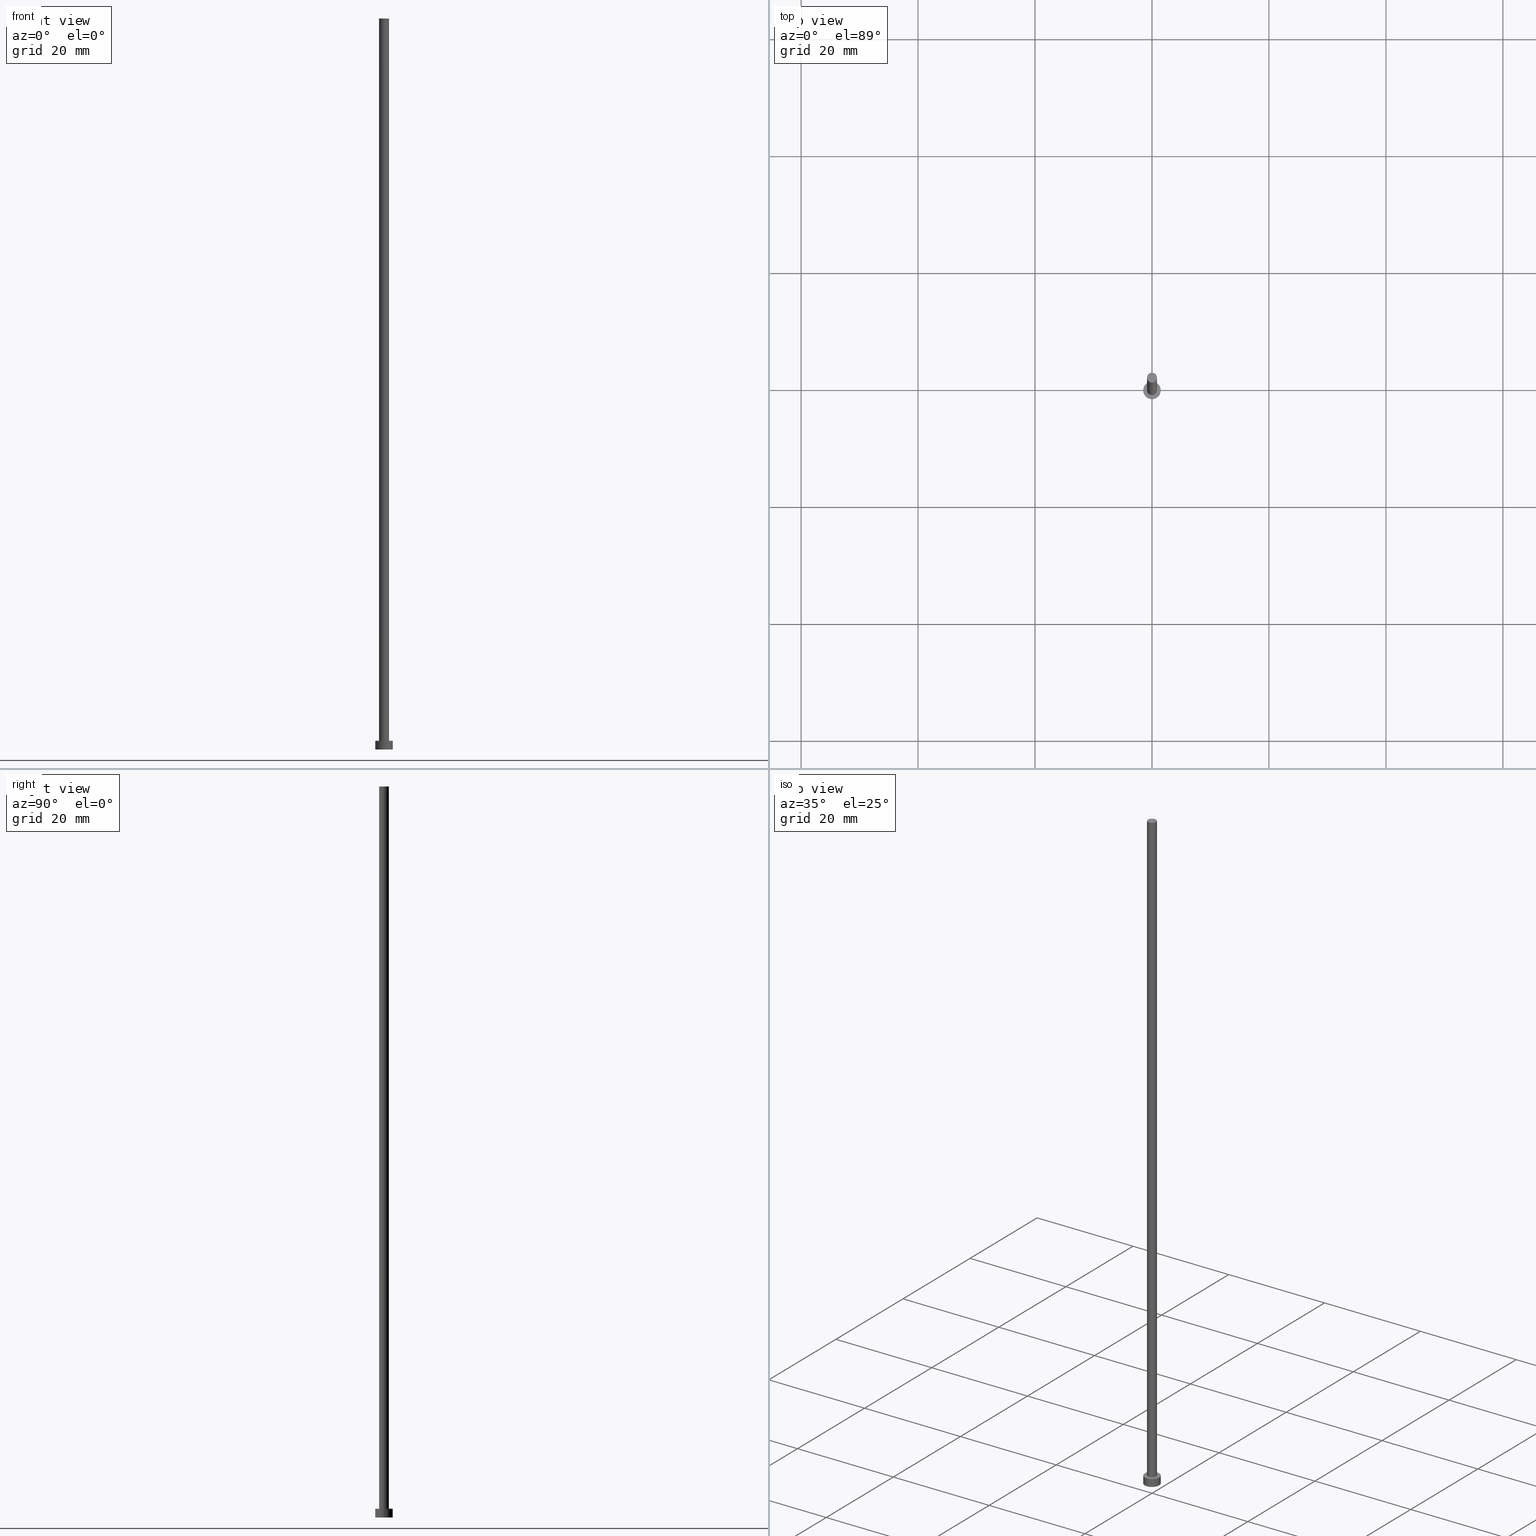
[diagram: canonical four-view strip — front | top / right | iso, engineering-drawing reading convention]
A machine part, canonical four-view strip (front | top / right | iso — engineering-drawing reading convention). The complete STEP part file that produces these views, byte-faithful:
ISO-10303-21;
HEADER;
FILE_DESCRIPTION (( 'STEP AP203' ),
    '1' );
FILE_NAME ('6d79.STEP',
    '2023-02-13T14:57:56',
    ( '' ),
    ( '' ),
    'SwSTEP 2.0',
    'SolidWorks 2019',
    '' );
FILE_SCHEMA (( 'CONFIG_CONTROL_DESIGN' ));
ENDSEC;

DATA;
#1 = PERSON_AND_ORGANIZATION ( #219, #132 ) ;
#2 = CARTESIAN_POINT ( 'NONE',  ( 0.000000000000000000, 0.000000000000000000, 0.000000000000000000 ) ) ;
#3 = AXIS2_PLACEMENT_3D ( 'NONE', #205, #35, #120 ) ;
#4 = DIRECTION ( 'NONE',  ( -0.000000000000000000, -0.000000000000000000, -1.000000000000000000 ) ) ;
#5 = CC_DESIGN_APPROVAL ( #229, ( #53 ) ) ;
#6 =( NAMED_UNIT ( * ) SI_UNIT ( $, .STERADIAN. ) SOLID_ANGLE_UNIT ( ) );
#7 = AXIS2_PLACEMENT_3D ( 'NONE', #199, #214, #129 ) ;
#8 = AXIS2_PLACEMENT_3D ( 'NONE', #65, #45, #197 ) ;
#9 = PRODUCT_DEFINITION_SHAPE ( 'NONE', 'NONE',  #53 ) ;
#10 = APPLICATION_PROTOCOL_DEFINITION ( 'international standard', 'config_control_design', 1994, #145 ) ;
#11 = EDGE_LOOP ( 'NONE', ( #184, #109, #80, #78 ) ) ;
#12 = APPROVAL_ROLE ( '' ) ;
#13 = CC_DESIGN_PERSON_AND_ORGANIZATION_ASSIGNMENT ( #75, #245, ( #142 ) ) ;
#14 = ORIENTED_EDGE ( 'NONE', *, *, #37, .T. ) ;
#15 = MANIFOLD_SOLID_BREP ( 'P�idat vysunut�m3', #160 ) ;
#16 = DIRECTION ( 'NONE',  ( 0.000000000000000000, 0.000000000000000000, 1.000000000000000000 ) ) ;
#17 = CIRCLE ( 'NONE', #88, 0.8499999999999999778 ) ;
#18 = DIRECTION ( 'NONE',  ( 1.000000000000000000, 0.000000000000000000, -0.000000000000000000 ) ) ;
#19 = DIRECTION ( 'NONE',  ( 1.000000000000000000, 0.000000000000000000, 0.000000000000000000 ) ) ;
#20 = EDGE_LOOP ( 'NONE', ( #61, #73, #150, #156 ) ) ;
#21 = CARTESIAN_POINT ( 'NONE',  ( 0.000000000000000000, 0.000000000000000000, 125.0000000000000000 ) ) ;
#22 = AXIS2_PLACEMENT_3D ( 'NONE', #227, #143, #254 ) ;
#23 = VERTEX_POINT ( 'NONE', #97 ) ;
#24 = FACE_OUTER_BOUND ( 'NONE', #20, .T. ) ;
#25 = EDGE_CURVE ( 'NONE', #192, #27, #166, .T. ) ;
#26 = DATE_TIME_ROLE ( 'creation_date' ) ;
#27 = VERTEX_POINT ( 'NONE', #194 ) ;
#28 =( LENGTH_UNIT ( ) NAMED_UNIT ( * ) SI_UNIT ( .MILLI., .METRE. ) );
#29 = EDGE_CURVE ( 'NONE', #188, #178, #51, .T. ) ;
#30 = COORDINATED_UNIVERSAL_TIME_OFFSET ( 1, 0, .AHEAD. ) ;
#31 = CARTESIAN_POINT ( 'NONE',  ( 0.000000000000000000, 0.000000000000000000, 0.000000000000000000 ) ) ;
#32 = CARTESIAN_POINT ( 'NONE',  ( 1.500000000000000222, 1.836970198721030181E-16, 1.500000000000000000 ) ) ;
#33 = ADVANCED_BREP_SHAPE_REPRESENTATION ( '6d79', ( #15, #203 ), #213 ) ;
#34 = APPROVAL ( #164, 'NEUR�EN�' ) ;
#35 = DIRECTION ( 'NONE',  ( 0.000000000000000000, 0.000000000000000000, 1.000000000000000000 ) ) ;
#36 = DATE_AND_TIME ( #139, #249 ) ;
#37 = EDGE_CURVE ( 'NONE', #154, #192, #225, .T. ) ;
#38 = ORIENTED_EDGE ( 'NONE', *, *, #67, .F. ) ;
#39 = APPLICATION_PROTOCOL_DEFINITION ( 'international standard', 'config_control_design', 1994, #149 ) ;
#40 = DIRECTION ( 'NONE',  ( 0.000000000000000000, 0.000000000000000000, 1.000000000000000000 ) ) ;
#41 = ORIENTED_EDGE ( 'NONE', *, *, #67, .T. ) ;
#42 = EDGE_CURVE ( 'NONE', #236, #178, #84, .T. ) ;
#43 = CYLINDRICAL_SURFACE ( 'NONE', #193, 1.500000000000000222 ) ;
#44 = FACE_OUTER_BOUND ( 'NONE', #119, .T. ) ;
#45 = DIRECTION ( 'NONE',  ( -0.000000000000000000, -0.000000000000000000, -1.000000000000000000 ) ) ;
#46 = CC_DESIGN_PERSON_AND_ORGANIZATION_ASSIGNMENT ( #179, #241, ( #89 ) ) ;
#47 = AXIS2_PLACEMENT_3D ( 'NONE', #125, #216, #50 ) ;
#48 = CARTESIAN_POINT ( 'NONE',  ( 0.8499999999999999778, 1.040949779275250140E-16, 125.0000000000000000 ) ) ;
#49 = CARTESIAN_POINT ( 'NONE',  ( 0.000000000000000000, 0.000000000000000000, 1.500000000000000000 ) ) ;
#50 = DIRECTION ( 'NONE',  ( 1.000000000000000000, 0.000000000000000000, 0.000000000000000000 ) ) ;
#51 = CIRCLE ( 'NONE', #131, 0.8499999999999999778 ) ;
#52 = LOCAL_TIME ( 15, 57, 56.00000000000000000, #100 ) ;
#53 = PRODUCT_DEFINITION ( 'NEZN�M�', '', #142, #127 ) ;
#54 = APPROVAL_DATE_TIME ( #147, #229 ) ;
#55 = PERSON_AND_ORGANIZATION ( #219, #132 ) ;
#56 = COORDINATED_UNIVERSAL_TIME_OFFSET ( 1, 0, .AHEAD. ) ;
#57 = EDGE_LOOP ( 'NONE', ( #141, #210 ) ) ;
#58 = SECURITY_CLASSIFICATION ( '', '', #138 ) ;
#59 = LINE ( 'NONE', #82, #222 ) ;
#60 = DIRECTION ( 'NONE',  ( -0.000000000000000000, -0.000000000000000000, -1.000000000000000000 ) ) ;
#61 = ORIENTED_EDGE ( 'NONE', *, *, #42, .F. ) ;
#62 = EDGE_LOOP ( 'NONE', ( #14, #41 ) ) ;
#63 = CALENDAR_DATE ( 2023, 13, 2 ) ;
#64 = CYLINDRICAL_SURFACE ( 'NONE', #226, 0.8499999999999999778 ) ;
#65 = CARTESIAN_POINT ( 'NONE',  ( 0.000000000000000000, 0.000000000000000000, 1.500000000000000000 ) ) ;
#66 = APPROVAL_DATE_TIME ( #128, #102 ) ;
#67 = EDGE_CURVE ( 'NONE', #192, #154, #167, .T. ) ;
#68 = CALENDAR_DATE ( 2023, 13, 2 ) ;
#69 = CC_DESIGN_PERSON_AND_ORGANIZATION_ASSIGNMENT ( #183, #255, ( #58 ) ) ;
#70 = APPROVAL_STATUS ( 'not_yet_approved' ) ;
#71 = ADVANCED_FACE ( 'NONE', ( #44 ), #124, .T. ) ;
#72 = CALENDAR_DATE ( 2023, 13, 2 ) ;
#73 = ORIENTED_EDGE ( 'NONE', *, *, #111, .F. ) ;
#74 = AXIS2_PLACEMENT_3D ( 'NONE', #2, #130, #198 ) ;
#75 = PERSON_AND_ORGANIZATION ( #219, #132 ) ;
#76 = PLANE ( 'NONE',  #3 ) ;
#77 = CYLINDRICAL_SURFACE ( 'NONE', #8, 1.500000000000000222 ) ;
#78 = ORIENTED_EDGE ( 'NONE', *, *, #240, .T. ) ;
#79 = LINE ( 'NONE', #91, #253 ) ;
#80 = ORIENTED_EDGE ( 'NONE', *, *, #180, .T. ) ;
#81 = APPROVAL_DATE_TIME ( #170, #34 ) ;
#82 = CARTESIAN_POINT ( 'NONE',  ( -1.500000000000000222, 0.000000000000000000, 1.500000000000000000 ) ) ;
#83 = AXIS2_PLACEMENT_3D ( 'NONE', #202, #40, #18 ) ;
#84 = LINE ( 'NONE', #48, #151 ) ;
#85 = LOCAL_TIME ( 15, 57, 56.00000000000000000, #105 ) ;
#86 = CARTESIAN_POINT ( 'NONE',  ( 0.8499999999999999778, 1.040949779275250140E-16, 125.0000000000000000 ) ) ;
#87 = CARTESIAN_POINT ( 'NONE',  ( 0.000000000000000000, 0.000000000000000000, 1.500000000000000000 ) ) ;
#88 = AXIS2_PLACEMENT_3D ( 'NONE', #200, #112, #19 ) ;
#89 = PRODUCT ( '6d79', '6d79', '', ( #90 ) ) ;
#90 = MECHANICAL_CONTEXT ( 'NONE', #145, 'mechanical' ) ;
#91 = CARTESIAN_POINT ( 'NONE',  ( -0.8499999999999999778, 0.000000000000000000, 125.0000000000000000 ) ) ;
#92 = CIRCLE ( 'NONE', #47, 0.8499999999999999778 ) ;
#93 = APPROVAL_ROLE ( '' ) ;
#94 = CARTESIAN_POINT ( 'NONE',  ( -0.8499999999999999778, 0.000000000000000000, 125.0000000000000000 ) ) ;
#95 = ORIENTED_EDGE ( 'NONE', *, *, #240, .F. ) ;
#96 = DIRECTION ( 'NONE',  ( -1.000000000000000000, 0.000000000000000000, 0.000000000000000000 ) ) ;
#97 = CARTESIAN_POINT ( 'NONE',  ( -1.500000000000000222, 0.000000000000000000, 0.000000000000000000 ) ) ;
#98 = AXIS2_PLACEMENT_3D ( 'NONE', #21, #104, #96 ) ;
#99 = PLANE ( 'NONE',  #83 ) ;
#100 = COORDINATED_UNIVERSAL_TIME_OFFSET ( 1, 0, .AHEAD. ) ;
#101 = VERTEX_POINT ( 'NONE', #94 ) ;
#102 = APPROVAL ( #218, 'NEUR�EN�' ) ;
#103 = CARTESIAN_POINT ( 'NONE',  ( 0.000000000000000000, 0.000000000000000000, 1.500000000000000000 ) ) ;
#104 = DIRECTION ( 'NONE',  ( -0.000000000000000000, -0.000000000000000000, -1.000000000000000000 ) ) ;
#105 = COORDINATED_UNIVERSAL_TIME_OFFSET ( 1, 0, .AHEAD. ) ;
#106 = CARTESIAN_POINT ( 'NONE',  ( 0.000000000000000000, 0.000000000000000000, 125.0000000000000000 ) ) ;
#107 = ORIENTED_EDGE ( 'NONE', *, *, #42, .T. ) ;
#108 = DIRECTION ( 'NONE',  ( 1.000000000000000000, 0.000000000000000000, 0.000000000000000000 ) ) ;
#109 = ORIENTED_EDGE ( 'NONE', *, *, #37, .F. ) ;
#110 = DIRECTION ( 'NONE',  ( -0.000000000000000000, -0.000000000000000000, -1.000000000000000000 ) ) ;
#111 = EDGE_CURVE ( 'NONE', #101, #236, #148, .T. ) ;
#112 = DIRECTION ( 'NONE',  ( 0.000000000000000000, 0.000000000000000000, 1.000000000000000000 ) ) ;
#113 = DIRECTION ( 'NONE',  ( 0.000000000000000000, 0.000000000000000000, 1.000000000000000000 ) ) ;
#114 = CARTESIAN_POINT ( 'NONE',  ( -0.8499999999999999778, 0.000000000000000000, 1.500000000000000000 ) ) ;
#115 = ADVANCED_FACE ( 'NONE', ( #209 ), #185, .T. ) ;
#116 = DIRECTION ( 'NONE',  ( 1.000000000000000000, 0.000000000000000000, 0.000000000000000000 ) ) ;
#117 = PERSON_AND_ORGANIZATION_ROLE ( 'design_supplier' ) ;
#118 = ADVANCED_FACE ( 'NONE', ( #181 ), #99, .F. ) ;
#119 = EDGE_LOOP ( 'NONE', ( #136, #107, #195, #244 ) ) ;
#120 = DIRECTION ( 'NONE',  ( 1.000000000000000000, 0.000000000000000000, -0.000000000000000000 ) ) ;
#121 = APPROVAL_PERSON_ORGANIZATION ( #1, #102, #134 ) ;
#122 = ORIENTED_EDGE ( 'NONE', *, *, #25, .T. ) ;
#123 = PERSON_AND_ORGANIZATION ( #219, #132 ) ;
#124 = CYLINDRICAL_SURFACE ( 'NONE', #98, 0.8499999999999999778 ) ;
#125 = CARTESIAN_POINT ( 'NONE',  ( 0.000000000000000000, 0.000000000000000000, 125.0000000000000000 ) ) ;
#126 = ADVANCED_FACE ( 'NONE', ( #168, #251 ), #76, .T. ) ;
#127 = DESIGN_CONTEXT ( 'detailed design', #149, 'design' ) ;
#128 = DATE_AND_TIME ( #68, #146 ) ;
#129 = DIRECTION ( 'NONE',  ( 1.000000000000000000, 0.000000000000000000, 0.000000000000000000 ) ) ;
#130 = DIRECTION ( 'NONE',  ( 0.000000000000000000, 0.000000000000000000, 1.000000000000000000 ) ) ;
#131 = AXIS2_PLACEMENT_3D ( 'NONE', #49, #230, #108 ) ;
#132 = ORGANIZATION ( 'NEUR�EN�', 'NEUR�EN�', '' ) ;
#133 = CC_DESIGN_DATE_AND_TIME_ASSIGNMENT ( #36, #26, ( #53 ) ) ;
#134 = APPROVAL_ROLE ( '' ) ;
#135 = APPROVAL_PERSON_ORGANIZATION ( #191, #229, #93 ) ;
#136 = ORIENTED_EDGE ( 'NONE', *, *, #221, .F. ) ;
#137 = CARTESIAN_POINT ( 'NONE',  ( 0.000000000000000000, 0.000000000000000000, 125.0000000000000000 ) ) ;
#138 = SECURITY_CLASSIFICATION_LEVEL ( 'unclassified' ) ;
#139 = CALENDAR_DATE ( 2023, 13, 2 ) ;
#140 = DIRECTION ( 'NONE',  ( 1.000000000000000000, 0.000000000000000000, 0.000000000000000000 ) ) ;
#141 = ORIENTED_EDGE ( 'NONE', *, *, #111, .T. ) ;
#142 = PRODUCT_DEFINITION_FORMATION_WITH_SPECIFIED_SOURCE ( 'LIBOVOLN�', '', #89, .NOT_KNOWN. ) ;
#143 = DIRECTION ( 'NONE',  ( 0.000000000000000000, 0.000000000000000000, 1.000000000000000000 ) ) ;
#144 = DIRECTION ( 'NONE',  ( -1.000000000000000000, 0.000000000000000000, 0.000000000000000000 ) ) ;
#145 = APPLICATION_CONTEXT ( 'configuration controlled 3d designs of mechanical parts and assemblies' ) ;
#146 = LOCAL_TIME ( 15, 57, 56.00000000000000000, #30 ) ;
#147 = DATE_AND_TIME ( #72, #173 ) ;
#148 = CIRCLE ( 'NONE', #234, 0.8499999999999999778 ) ;
#149 = APPLICATION_CONTEXT ( 'configuration controlled 3d designs of mechanical parts and assemblies' ) ;
#150 = ORIENTED_EDGE ( 'NONE', *, *, #155, .T. ) ;
#151 = VECTOR ( 'NONE', #110, 1000.000000000000000 ) ;
#152 = FACE_OUTER_BOUND ( 'NONE', #11, .T. ) ;
#153 = CC_DESIGN_SECURITY_CLASSIFICATION ( #58, ( #142 ) ) ;
#154 = VERTEX_POINT ( 'NONE', #252 ) ;
#155 = EDGE_CURVE ( 'NONE', #101, #188, #79, .T. ) ;
#156 = ORIENTED_EDGE ( 'NONE', *, *, #29, .T. ) ;
#157 = CIRCLE ( 'NONE', #74, 1.500000000000000222 ) ;
#158 = EDGE_CURVE ( 'NONE', #27, #23, #172, .T. ) ;
#159 = DATE_TIME_ROLE ( 'classification_date' ) ;
#160 = CLOSED_SHELL ( 'NONE', ( #71, #217, #169, #126, #118, #235, #115 ) ) ;
#161 = COORDINATED_UNIVERSAL_TIME_OFFSET ( 1, 0, .AHEAD. ) ;
#162 = CC_DESIGN_PERSON_AND_ORGANIZATION_ASSIGNMENT ( #246, #206, ( #53 ) ) ;
#163 = FACE_OUTER_BOUND ( 'NONE', #175, .T. ) ;
#164 = APPROVAL_STATUS ( 'not_yet_approved' ) ;
#165 = DIRECTION ( 'NONE',  ( 1.000000000000000000, 0.000000000000000000, 0.000000000000000000 ) ) ;
#166 = LINE ( 'NONE', #247, #208 ) ;
#167 = CIRCLE ( 'NONE', #182, 1.500000000000000222 ) ;
#168 = FACE_BOUND ( 'NONE', #233, .T. ) ;
#169 = ADVANCED_FACE ( 'NONE', ( #152 ), #43, .T. ) ;
#170 = DATE_AND_TIME ( #250, #52 ) ;
#171 = ORIENTED_EDGE ( 'NONE', *, *, #180, .F. ) ;
#172 = CIRCLE ( 'NONE', #22, 1.500000000000000222 ) ;
#173 = LOCAL_TIME ( 15, 57, 56.00000000000000000, #161 ) ;
#174 = DIRECTION ( 'NONE',  ( -1.000000000000000000, 0.000000000000000000, 0.000000000000000000 ) ) ;
#175 = EDGE_LOOP ( 'NONE', ( #38, #122, #220, #171 ) ) ;
#176 = CC_DESIGN_APPROVAL ( #102, ( #58 ) ) ;
#177 = DIRECTION ( 'NONE',  ( 0.000000000000000000, 0.000000000000000000, 1.000000000000000000 ) ) ;
#178 = VERTEX_POINT ( 'NONE', #215 ) ;
#179 = PERSON_AND_ORGANIZATION ( #219, #132 ) ;
#180 = EDGE_CURVE ( 'NONE', #154, #23, #59, .T. ) ;
#181 = FACE_OUTER_BOUND ( 'NONE', #186, .T. ) ;
#182 = AXIS2_PLACEMENT_3D ( 'NONE', #87, #177, #140 ) ;
#183 = PERSON_AND_ORGANIZATION ( #219, #132 ) ;
#184 = ORIENTED_EDGE ( 'NONE', *, *, #25, .F. ) ;
#185 = PLANE ( 'NONE',  #189 ) ;
#186 = EDGE_LOOP ( 'NONE', ( #95, #207 ) ) ;
#187 = CARTESIAN_POINT ( 'NONE',  ( 0.000000000000000000, 0.000000000000000000, 125.0000000000000000 ) ) ;
#188 = VERTEX_POINT ( 'NONE', #114 ) ;
#189 = AXIS2_PLACEMENT_3D ( 'NONE', #137, #16, #224 ) ;
#190 = CC_DESIGN_APPROVAL ( #34, ( #142 ) ) ;
#191 = PERSON_AND_ORGANIZATION ( #219, #132 ) ;
#192 = VERTEX_POINT ( 'NONE', #32 ) ;
#193 = AXIS2_PLACEMENT_3D ( 'NONE', #103, #4, #144 ) ;
#194 = CARTESIAN_POINT ( 'NONE',  ( 1.500000000000000222, 1.836970198721030181E-16, 0.000000000000000000 ) ) ;
#195 = ORIENTED_EDGE ( 'NONE', *, *, #201, .T. ) ;
#196 = DIRECTION ( 'NONE',  ( -0.000000000000000000, -0.000000000000000000, -1.000000000000000000 ) ) ;
#197 = DIRECTION ( 'NONE',  ( -1.000000000000000000, 0.000000000000000000, 0.000000000000000000 ) ) ;
#198 = DIRECTION ( 'NONE',  ( 1.000000000000000000, 0.000000000000000000, 0.000000000000000000 ) ) ;
#199 = CARTESIAN_POINT ( 'NONE',  ( 0.000000000000000000, 0.000000000000000000, 1.500000000000000000 ) ) ;
#200 = CARTESIAN_POINT ( 'NONE',  ( 0.000000000000000000, 0.000000000000000000, 1.500000000000000000 ) ) ;
#201 = EDGE_CURVE ( 'NONE', #178, #188, #17, .T. ) ;
#202 = CARTESIAN_POINT ( 'NONE',  ( 0.000000000000000000, 0.000000000000000000, 0.000000000000000000 ) ) ;
#203 = AXIS2_PLACEMENT_3D ( 'NONE', #31, #113, #116 ) ;
#204 = DIRECTION ( 'NONE',  ( 0.000000000000000000, 0.000000000000000000, 1.000000000000000000 ) ) ;
#205 = CARTESIAN_POINT ( 'NONE',  ( 0.000000000000000000, 0.000000000000000000, 1.500000000000000000 ) ) ;
#206 = PERSON_AND_ORGANIZATION_ROLE ( 'creator' ) ;
#207 = ORIENTED_EDGE ( 'NONE', *, *, #158, .F. ) ;
#208 = VECTOR ( 'NONE', #232, 1000.000000000000000 ) ;
#209 = FACE_OUTER_BOUND ( 'NONE', #57, .T. ) ;
#210 = ORIENTED_EDGE ( 'NONE', *, *, #221, .T. ) ;
#211 = ORIENTED_EDGE ( 'NONE', *, *, #201, .F. ) ;
#212 = PRODUCT_RELATED_PRODUCT_CATEGORY ( 'detail', '', ( #89 ) ) ;
#213 =( GEOMETRIC_REPRESENTATION_CONTEXT ( 3 ) GLOBAL_UNCERTAINTY_ASSIGNED_CONTEXT ( ( #237 ) ) GLOBAL_UNIT_ASSIGNED_CONTEXT ( ( #28, #228, #6 ) ) REPRESENTATION_CONTEXT ( 'NONE', 'WORKASPACE' ) );
#214 = DIRECTION ( 'NONE',  ( 0.000000000000000000, 0.000000000000000000, 1.000000000000000000 ) ) ;
#215 = CARTESIAN_POINT ( 'NONE',  ( 0.8499999999999999778, 1.040949779275250140E-16, 1.500000000000000000 ) ) ;
#216 = DIRECTION ( 'NONE',  ( 0.000000000000000000, 0.000000000000000000, 1.000000000000000000 ) ) ;
#217 = ADVANCED_FACE ( 'NONE', ( #163 ), #77, .T. ) ;
#218 = APPROVAL_STATUS ( 'not_yet_approved' ) ;
#219 = PERSON ( 'NEUR�EN�', 'NEUR�EN�', 'NEUR�EN�', ('NEUR�EN�'), ('NEUR�EN�'), ('NEUR�EN�') ) ;
#220 = ORIENTED_EDGE ( 'NONE', *, *, #158, .T. ) ;
#221 = EDGE_CURVE ( 'NONE', #236, #101, #92, .T. ) ;
#222 = VECTOR ( 'NONE', #60, 1000.000000000000000 ) ;
#223 = CC_DESIGN_DATE_AND_TIME_ASSIGNMENT ( #239, #159, ( #58 ) ) ;
#224 = DIRECTION ( 'NONE',  ( 1.000000000000000000, 0.000000000000000000, -0.000000000000000000 ) ) ;
#225 = CIRCLE ( 'NONE', #7, 1.500000000000000222 ) ;
#226 = AXIS2_PLACEMENT_3D ( 'NONE', #106, #196, #174 ) ;
#227 = CARTESIAN_POINT ( 'NONE',  ( 0.000000000000000000, 0.000000000000000000, 0.000000000000000000 ) ) ;
#228 =( NAMED_UNIT ( * ) PLANE_ANGLE_UNIT ( ) SI_UNIT ( $, .RADIAN. ) );
#229 = APPROVAL ( #70, 'NEUR�EN�' ) ;
#230 = DIRECTION ( 'NONE',  ( 0.000000000000000000, 0.000000000000000000, 1.000000000000000000 ) ) ;
#231 = ORIENTED_EDGE ( 'NONE', *, *, #29, .F. ) ;
#232 = DIRECTION ( 'NONE',  ( -0.000000000000000000, -0.000000000000000000, -1.000000000000000000 ) ) ;
#233 = EDGE_LOOP ( 'NONE', ( #231, #211 ) ) ;
#234 = AXIS2_PLACEMENT_3D ( 'NONE', #187, #204, #165 ) ;
#235 = ADVANCED_FACE ( 'NONE', ( #24 ), #64, .T. ) ;
#236 = VERTEX_POINT ( 'NONE', #86 ) ;
#237 = UNCERTAINTY_MEASURE_WITH_UNIT (LENGTH_MEASURE( 1.000000000000000082E-05 ), #28, 'distance_accuracy_value', 'NONE');
#238 = SHAPE_DEFINITION_REPRESENTATION ( #9, #33 ) ;
#239 = DATE_AND_TIME ( #63, #85 ) ;
#240 = EDGE_CURVE ( 'NONE', #23, #27, #157, .T. ) ;
#241 = PERSON_AND_ORGANIZATION_ROLE ( 'design_owner' ) ;
#242 = APPROVAL_PERSON_ORGANIZATION ( #123, #34, #12 ) ;
#243 = DIRECTION ( 'NONE',  ( -0.000000000000000000, -0.000000000000000000, -1.000000000000000000 ) ) ;
#244 = ORIENTED_EDGE ( 'NONE', *, *, #155, .F. ) ;
#245 = PERSON_AND_ORGANIZATION_ROLE ( 'creator' ) ;
#246 = PERSON_AND_ORGANIZATION ( #219, #132 ) ;
#247 = CARTESIAN_POINT ( 'NONE',  ( 1.500000000000000222, 1.836970198721030181E-16, 1.500000000000000000 ) ) ;
#248 = CC_DESIGN_PERSON_AND_ORGANIZATION_ASSIGNMENT ( #55, #117, ( #142 ) ) ;
#249 = LOCAL_TIME ( 15, 57, 56.00000000000000000, #56 ) ;
#250 = CALENDAR_DATE ( 2023, 13, 2 ) ;
#251 = FACE_OUTER_BOUND ( 'NONE', #62, .T. ) ;
#252 = CARTESIAN_POINT ( 'NONE',  ( -1.500000000000000222, 0.000000000000000000, 1.500000000000000000 ) ) ;
#253 = VECTOR ( 'NONE', #243, 1000.000000000000000 ) ;
#254 = DIRECTION ( 'NONE',  ( 1.000000000000000000, 0.000000000000000000, 0.000000000000000000 ) ) ;
#255 = PERSON_AND_ORGANIZATION_ROLE ( 'classification_officer' ) ;
ENDSEC;
END-ISO-10303-21;
